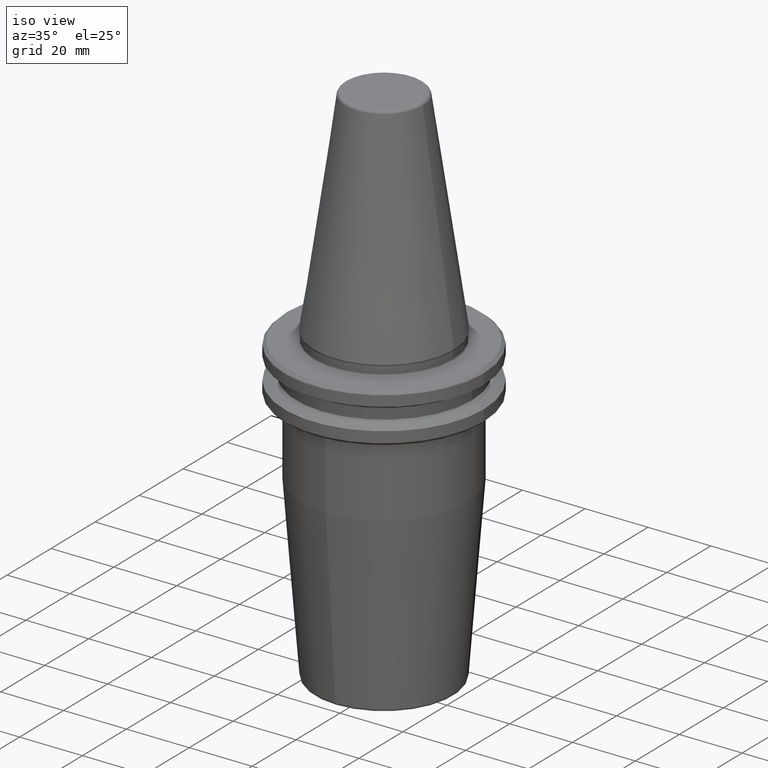
[diagram: clean part render]
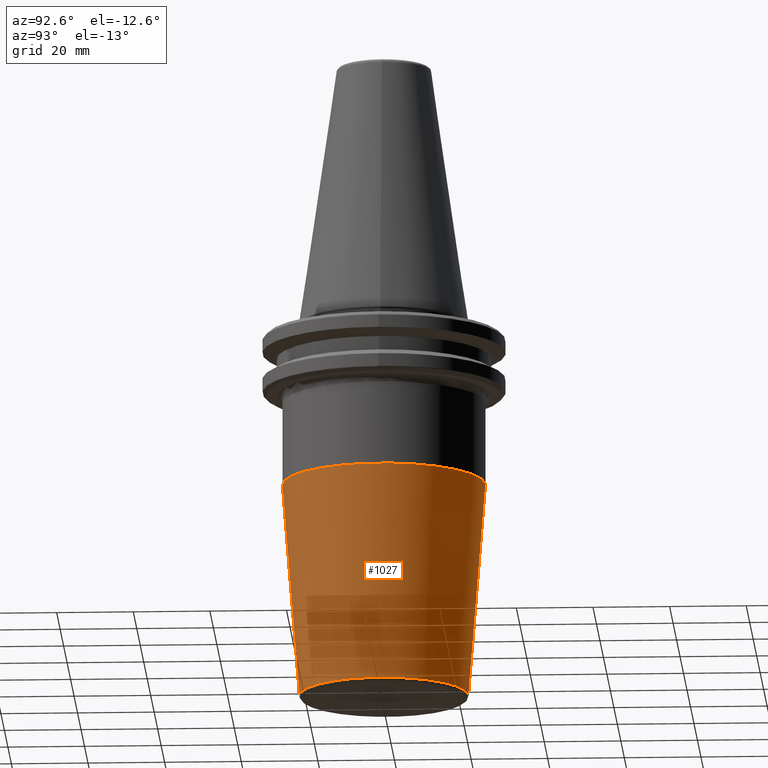
[diagram: tour spotlight — one face highlighted and labeled with its STEP entity id]
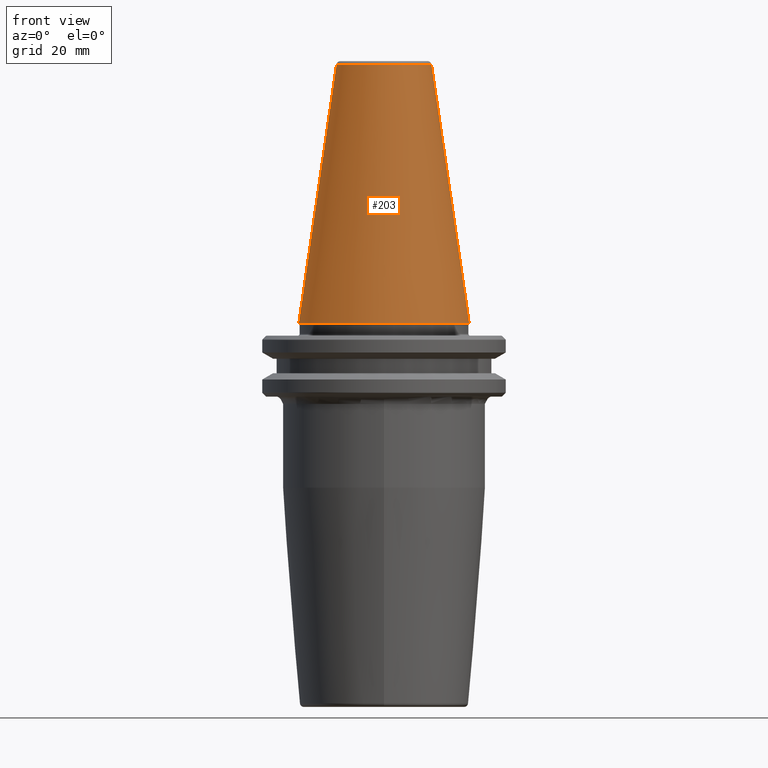
[diagram: tour spotlight — one face highlighted and labeled with its STEP entity id]
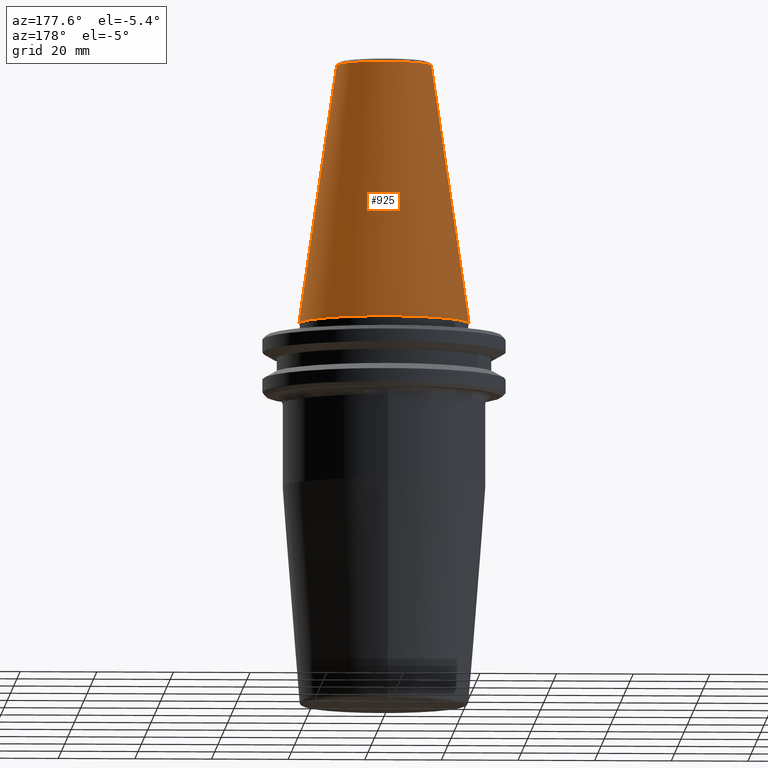
[diagram: tour spotlight — one face highlighted and labeled with its STEP entity id]
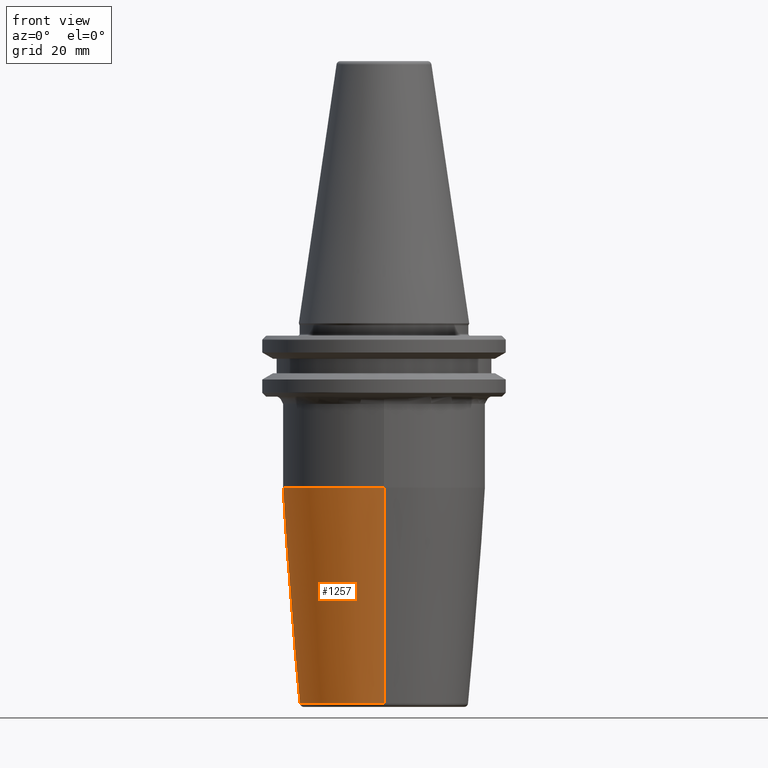
[diagram: tour spotlight — one face highlighted and labeled with its STEP entity id]
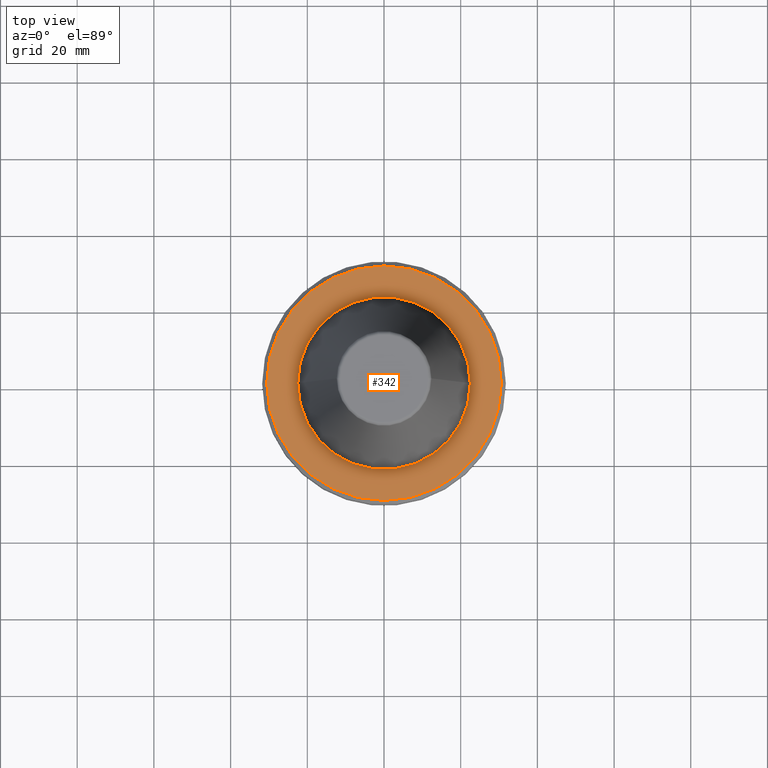
[diagram: tour spotlight — one face highlighted and labeled with its STEP entity id]
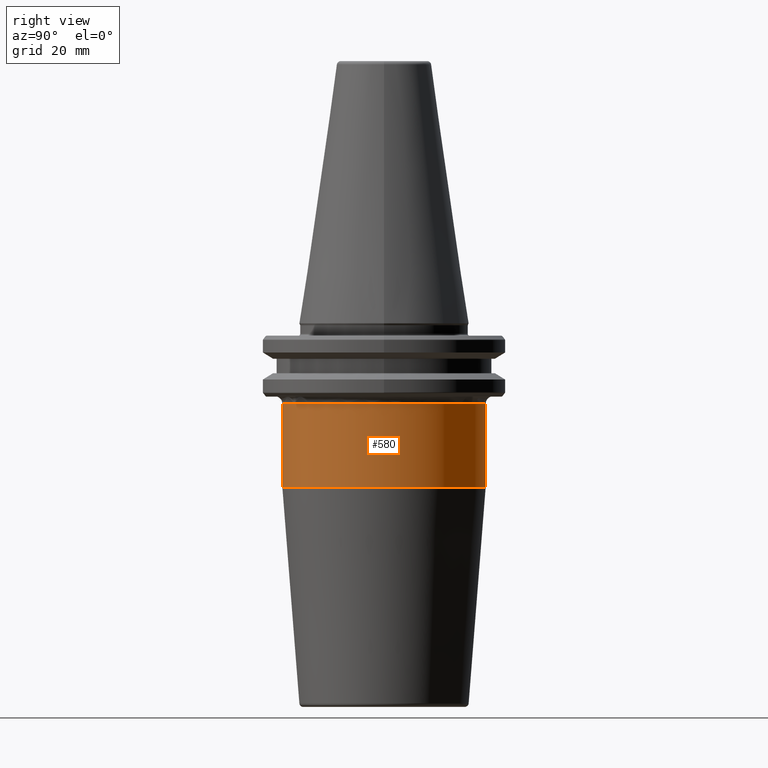
[diagram: tour spotlight — one face highlighted and labeled with its STEP entity id]
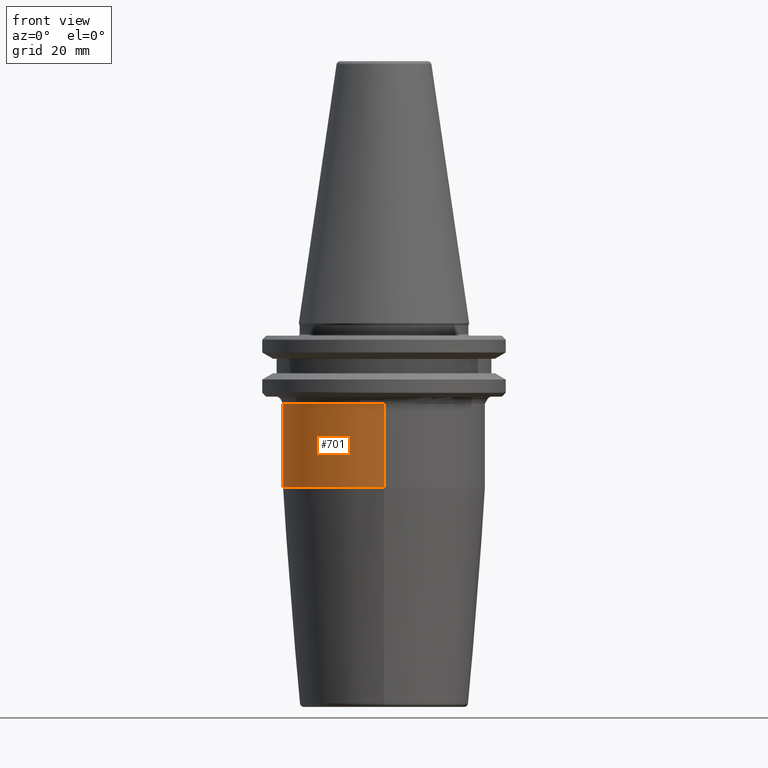
[diagram: tour spotlight — one face highlighted and labeled with its STEP entity id]
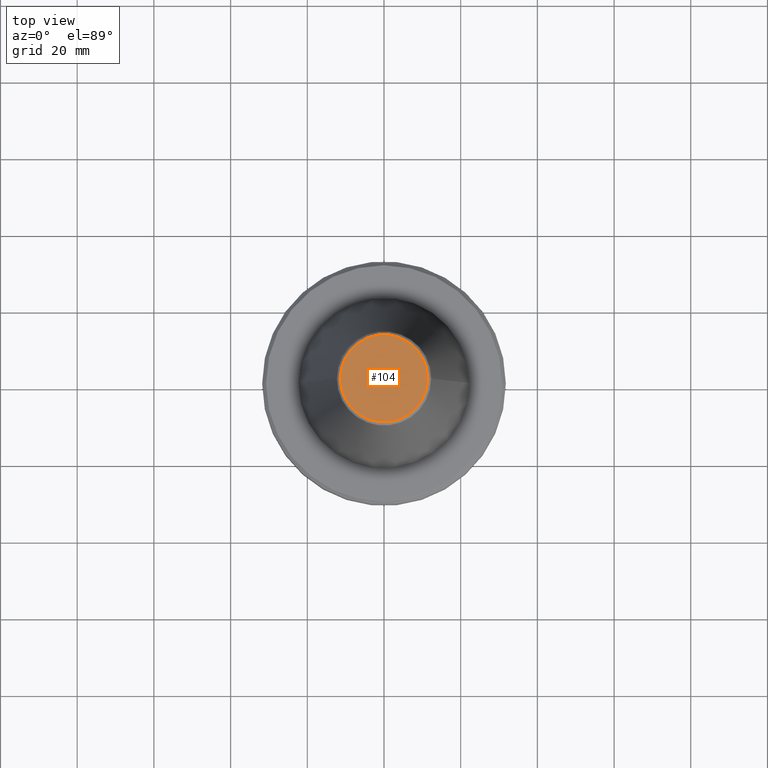
[diagram: tour spotlight — one face highlighted and labeled with its STEP entity id]
A machine part: a face-by-face anatomy tour. The part has 46 B-rep faces; the first image is the clean iso view, then the 8 largest visible faces are spotlighted one at a time (largest first), each with its STEP entity span.

Face 1 — auxiliary view, entity #1027. In plain terms, the highlighted conical surface has half-angle 4.5 deg.
Definition (entity closure, byte-faithful):
#33 = ORIENTED_EDGE ( 'NONE', *, *, #617, .T. ) ;
#139 = CARTESIAN_POINT ( 'NONE',  ( 0.0000000000000000000, -1.146734562630550800E-014, -42.82207868721393900 ) ) ;
#172 = ORIENTED_EDGE ( 'NONE', *, *, #892, .F. ) ;
#175 = FACE_OUTER_BOUND ( 'NONE', #568, .T. ) ;
#176 = VERTEX_POINT ( 'NONE', #1026 ) ;
#205 = DIRECTION ( 'NONE',  ( 9.608468044710158200E-018, 0.07845909572784511000, 0.9969173337331278500 ) ) ;
#257 = DIRECTION ( 'NONE',  ( -0.0000000000000000000, 2.433918356085496500E-016, -1.000000000000000000 ) ) ;
#271 = CARTESIAN_POINT ( 'NONE',  ( 0.0000000000000000000, 22.07252684207491800, -99.07845909572785100 ) ) ;
#273 = DIRECTION ( 'NONE',  ( 0.0000000000000000000, -1.000000000000000000, 0.0000000000000000000 ) ) ;
#311 = ORIENTED_EDGE ( 'NONE', *, *, #1006, .F. ) ;
#314 = VECTOR ( 'NONE', #205, 1000.000000000000100 ) ;
#343 = LINE ( 'NONE', #1123, #314 ) ;
#361 = CARTESIAN_POINT ( 'NONE',  ( 2.703104934624108200E-015, -22.07252684207491100, -99.07845909572785100 ) ) ;
#422 = DIRECTION ( 'NONE',  ( 0.0000000000000000000, -2.433918356085496500E-016, 1.000000000000000000 ) ) ;
#430 = CIRCLE ( 'NONE', #1098, 22.07252684207491500 ) ;
#443 = DIRECTION ( 'NONE',  ( 0.0000000000000000000, 1.000000000000000000, 2.618450529776311800E-016 ) ) ;
#522 = DIRECTION ( 'NONE',  ( 0.0000000000000000000, 1.000000000000000000, 0.0000000000000000000 ) ) ;
#551 = CARTESIAN_POINT ( 'NONE',  ( 0.0000000000000000000, 2.224998066015546000E-015, -99.07845909572785100 ) ) ;
#552 = EDGE_CURVE ( 'NONE', #952, #176, #922, .T. ) ;
#568 = EDGE_LOOP ( 'NONE', ( #311, #33, #1161, #172 ) ) ;
#598 = DIRECTION ( 'NONE',  ( -0.0000000000000000000, 2.433918356085496500E-016, -1.000000000000000000 ) ) ;
#617 = EDGE_CURVE ( 'NONE', #1150, #952, #343, .T. ) ;
#630 = CONICAL_SURFACE ( 'NONE', #1222, 22.07252684207491500, 0.07853981633974524400 ) ;
#734 = AXIS2_PLACEMENT_3D ( 'NONE', #139, #257, #443 ) ;
#817 = LINE ( 'NONE', #1039, #1045 ) ;
#878 = DIRECTION ( 'NONE',  ( 0.0000000000000000000, -0.07845909572784558200, 0.9969173337331278500 ) ) ;
#892 = EDGE_CURVE ( 'NONE', #1114, #176, #817, .T. ) ;
#922 = CIRCLE ( 'NONE', #734, 26.50000000000001100 ) ;
#944 = CARTESIAN_POINT ( 'NONE',  ( 3.245314017740487300E-015, 26.50000000000000000, -42.82207868721393100 ) ) ;
#952 = VERTEX_POINT ( 'NONE', #944 ) ;
#960 = CARTESIAN_POINT ( 'NONE',  ( 0.0000000000000000000, 2.224998066015546000E-015, -99.07845909572785100 ) ) ;
#1006 = EDGE_CURVE ( 'NONE', #1150, #1114, #430, .T. ) ;
#1026 = CARTESIAN_POINT ( 'NONE',  ( 0.0000000000000000000, -26.50000000000002100, -42.82207868721394600 ) ) ;
#1027 = ADVANCED_FACE ( 'NONE', ( #175 ), #630, .T. ) ;
#1039 = CARTESIAN_POINT ( 'NONE',  ( 0.0000000000000000000, -22.07252684207491100, -99.07845909572785100 ) ) ;
#1045 = VECTOR ( 'NONE', #878, 1000.000000000000100 ) ;
#1098 = AXIS2_PLACEMENT_3D ( 'NONE', #960, #598, #522 ) ;
#1114 = VERTEX_POINT ( 'NONE', #361 ) ;
#1123 = CARTESIAN_POINT ( 'NONE',  ( 2.703104934624108200E-015, 22.07252684207491800, -99.07845909572785100 ) ) ;
#1150 = VERTEX_POINT ( 'NONE', #271 ) ;
#1161 = ORIENTED_EDGE ( 'NONE', *, *, #552, .T. ) ;
#1222 = AXIS2_PLACEMENT_3D ( 'NONE', #551, #422, #273 ) ;

Face 2 — front view, entity #203. In plain terms, the highlighted conical surface has half-angle 8.297 deg.
Definition (entity closure, byte-faithful):
#64 = CARTESIAN_POINT ( 'NONE',  ( 12.37469537611110800, 1.515463108277802100E-015, 67.54430822726729400 ) ) ;
#66 = DIRECTION ( 'NONE',  ( 1.000000000000000000, 0.0000000000000000000, 0.0000000000000000000 ) ) ;
#102 = DIRECTION ( 'NONE',  ( -0.0000000000000000000, -0.0000000000000000000, 1.000000000000000000 ) ) ;
#105 = VERTEX_POINT ( 'NONE', #722 ) ;
#153 = CARTESIAN_POINT ( 'NONE',  ( -22.22500000000000500, 2.721777511104993200E-015, 0.0000000000000000000 ) ) ;
#168 = EDGE_CURVE ( 'NONE', #198, #957, #1213, .T. ) ;
#198 = VERTEX_POINT ( 'NONE', #325 ) ;
#203 = ADVANCED_FACE ( 'NONE', ( #411 ), #378, .T. ) ;
#232 = CARTESIAN_POINT ( 'NONE',  ( 0.0000000000000000000, 0.0000000000000000000, 67.54430822726729400 ) ) ;
#260 = DIRECTION ( 'NONE',  ( 0.1443082272673071000, 1.767266086135364600E-017, -0.9895327864921743500 ) ) ;
#261 = VECTOR ( 'NONE', #387, 1000.000000000000000 ) ;
#286 = LINE ( 'NONE', #668, #261 ) ;
#291 = VERTEX_POINT ( 'NONE', #153 ) ;
#302 = ORIENTED_EDGE ( 'NONE', *, *, #654, .T. ) ;
#325 = CARTESIAN_POINT ( 'NONE',  ( 12.37469537611110800, 2.118620309691397700E-015, 67.54430822726729400 ) ) ;
#378 = CONICAL_SURFACE ( 'NONE', #857, 12.37469537611110800, 0.1448138465474191100 ) ;
#387 = DIRECTION ( 'NONE',  ( -0.1443082272673071000, 0.0000000000000000000, -0.9895327864921743500 ) ) ;
#411 = FACE_OUTER_BOUND ( 'NONE', #445, .T. ) ;
#445 = EDGE_LOOP ( 'NONE', ( #1216, #1096, #302, #870 ) ) ;
#554 = DIRECTION ( 'NONE',  ( 1.000000000000000000, 0.0000000000000000000, 0.0000000000000000000 ) ) ;
#654 = EDGE_CURVE ( 'NONE', #105, #291, #286, .T. ) ;
#655 = CIRCLE ( 'NONE', #950, 22.22500000000000500 ) ;
#668 = CARTESIAN_POINT ( 'NONE',  ( -12.37469537611110800, 0.0000000000000000000, 67.54430822726729400 ) ) ;
#704 = CARTESIAN_POINT ( 'NONE',  ( 22.22500000000000500, 0.0000000000000000000, 0.0000000000000000000 ) ) ;
#710 = VECTOR ( 'NONE', #260, 1000.000000000000000 ) ;
#722 = CARTESIAN_POINT ( 'NONE',  ( -12.37469537611110800, 0.0000000000000000000, 67.54430822726729400 ) ) ;
#730 = CARTESIAN_POINT ( 'NONE',  ( 0.0000000000000000000, 0.0000000000000000000, 67.54430822726729400 ) ) ;
#840 = DIRECTION ( 'NONE',  ( 0.0000000000000000000, 0.0000000000000000000, -1.000000000000000000 ) ) ;
#846 = CARTESIAN_POINT ( 'NONE',  ( 0.0000000000000000000, 0.0000000000000000000, 0.0000000000000000000 ) ) ;
#857 = AXIS2_PLACEMENT_3D ( 'NONE', #730, #840, #1034 ) ;
#870 = ORIENTED_EDGE ( 'NONE', *, *, #1209, .T. ) ;
#891 = CIRCLE ( 'NONE', #1014, 12.37469537611110800 ) ;
#950 = AXIS2_PLACEMENT_3D ( 'NONE', #846, #102, #554 ) ;
#957 = VERTEX_POINT ( 'NONE', #704 ) ;
#966 = DIRECTION ( 'NONE',  ( -0.0000000000000000000, -0.0000000000000000000, 1.000000000000000000 ) ) ;
#1014 = AXIS2_PLACEMENT_3D ( 'NONE', #232, #966, #66 ) ;
#1034 = DIRECTION ( 'NONE',  ( -1.000000000000000000, 0.0000000000000000000, 0.0000000000000000000 ) ) ;
#1096 = ORIENTED_EDGE ( 'NONE', *, *, #1243, .F. ) ;
#1209 = EDGE_CURVE ( 'NONE', #291, #957, #655, .T. ) ;
#1213 = LINE ( 'NONE', #64, #710 ) ;
#1216 = ORIENTED_EDGE ( 'NONE', *, *, #168, .F. ) ;
#1243 = EDGE_CURVE ( 'NONE', #105, #198, #891, .T. ) ;

Face 3 — auxiliary view, entity #925. In plain terms, the highlighted conical surface has half-angle 8.297 deg.
Definition (entity closure, byte-faithful):
#64 = CARTESIAN_POINT ( 'NONE',  ( 12.37469537611110800, 1.515463108277802100E-015, 67.54430822726729400 ) ) ;
#67 = ORIENTED_EDGE ( 'NONE', *, *, #197, .F. ) ;
#105 = VERTEX_POINT ( 'NONE', #722 ) ;
#114 = DIRECTION ( 'NONE',  ( 0.0000000000000000000, 0.0000000000000000000, -1.000000000000000000 ) ) ;
#144 = CIRCLE ( 'NONE', #352, 22.22500000000000500 ) ;
#145 = DIRECTION ( 'NONE',  ( 1.000000000000000000, 0.0000000000000000000, 0.0000000000000000000 ) ) ;
#153 = CARTESIAN_POINT ( 'NONE',  ( -22.22500000000000500, 2.721777511104993200E-015, 0.0000000000000000000 ) ) ;
#168 = EDGE_CURVE ( 'NONE', #198, #957, #1213, .T. ) ;
#197 = EDGE_CURVE ( 'NONE', #198, #105, #444, .T. ) ;
#198 = VERTEX_POINT ( 'NONE', #325 ) ;
#260 = DIRECTION ( 'NONE',  ( 0.1443082272673071000, 1.767266086135364600E-017, -0.9895327864921743500 ) ) ;
#261 = VECTOR ( 'NONE', #387, 1000.000000000000000 ) ;
#286 = LINE ( 'NONE', #668, #261 ) ;
#291 = VERTEX_POINT ( 'NONE', #153 ) ;
#296 = FACE_OUTER_BOUND ( 'NONE', #747, .T. ) ;
#321 = ORIENTED_EDGE ( 'NONE', *, *, #168, .T. ) ;
#325 = CARTESIAN_POINT ( 'NONE',  ( 12.37469537611110800, 2.118620309691397700E-015, 67.54430822726729400 ) ) ;
#336 = DIRECTION ( 'NONE',  ( 1.000000000000000000, 0.0000000000000000000, 0.0000000000000000000 ) ) ;
#352 = AXIS2_PLACEMENT_3D ( 'NONE', #447, #458, #145 ) ;
#369 = ORIENTED_EDGE ( 'NONE', *, *, #654, .F. ) ;
#382 = DIRECTION ( 'NONE',  ( -1.000000000000000000, 0.0000000000000000000, 0.0000000000000000000 ) ) ;
#387 = DIRECTION ( 'NONE',  ( -0.1443082272673071000, 0.0000000000000000000, -0.9895327864921743500 ) ) ;
#399 = ORIENTED_EDGE ( 'NONE', *, *, #573, .T. ) ;
#432 = CARTESIAN_POINT ( 'NONE',  ( 0.0000000000000000000, 0.0000000000000000000, 67.54430822726729400 ) ) ;
#444 = CIRCLE ( 'NONE', #762, 12.37469537611110800 ) ;
#447 = CARTESIAN_POINT ( 'NONE',  ( 0.0000000000000000000, 0.0000000000000000000, 0.0000000000000000000 ) ) ;
#458 = DIRECTION ( 'NONE',  ( -0.0000000000000000000, -0.0000000000000000000, 1.000000000000000000 ) ) ;
#573 = EDGE_CURVE ( 'NONE', #957, #291, #144, .T. ) ;
#644 = AXIS2_PLACEMENT_3D ( 'NONE', #1048, #114, #382 ) ;
#654 = EDGE_CURVE ( 'NONE', #105, #291, #286, .T. ) ;
#668 = CARTESIAN_POINT ( 'NONE',  ( -12.37469537611110800, 0.0000000000000000000, 67.54430822726729400 ) ) ;
#704 = CARTESIAN_POINT ( 'NONE',  ( 22.22500000000000500, 0.0000000000000000000, 0.0000000000000000000 ) ) ;
#710 = VECTOR ( 'NONE', #260, 1000.000000000000000 ) ;
#722 = CARTESIAN_POINT ( 'NONE',  ( -12.37469537611110800, 0.0000000000000000000, 67.54430822726729400 ) ) ;
#729 = CONICAL_SURFACE ( 'NONE', #644, 12.37469537611110800, 0.1448138465474191100 ) ;
#747 = EDGE_LOOP ( 'NONE', ( #67, #321, #399, #369 ) ) ;
#762 = AXIS2_PLACEMENT_3D ( 'NONE', #432, #1019, #336 ) ;
#925 = ADVANCED_FACE ( 'NONE', ( #296 ), #729, .T. ) ;
#957 = VERTEX_POINT ( 'NONE', #704 ) ;
#1019 = DIRECTION ( 'NONE',  ( -0.0000000000000000000, -0.0000000000000000000, 1.000000000000000000 ) ) ;
#1048 = CARTESIAN_POINT ( 'NONE',  ( 0.0000000000000000000, 0.0000000000000000000, 67.54430822726729400 ) ) ;
#1213 = LINE ( 'NONE', #64, #710 ) ;

Face 4 — front view, entity #1257. In plain terms, the highlighted conical surface has half-angle 4.5 deg.
Definition (entity closure, byte-faithful):
#32 = ORIENTED_EDGE ( 'NONE', *, *, #671, .F. ) ;
#82 = DIRECTION ( 'NONE',  ( 0.0000000000000000000, 1.000000000000000000, 2.618450529776311800E-016 ) ) ;
#158 = AXIS2_PLACEMENT_3D ( 'NONE', #345, #406, #990 ) ;
#176 = VERTEX_POINT ( 'NONE', #1026 ) ;
#205 = DIRECTION ( 'NONE',  ( 9.608468044710158200E-018, 0.07845909572784511000, 0.9969173337331278500 ) ) ;
#230 = DIRECTION ( 'NONE',  ( -0.0000000000000000000, 2.433918356085496500E-016, -1.000000000000000000 ) ) ;
#234 = AXIS2_PLACEMENT_3D ( 'NONE', #677, #230, #82 ) ;
#271 = CARTESIAN_POINT ( 'NONE',  ( 0.0000000000000000000, 22.07252684207491800, -99.07845909572785100 ) ) ;
#276 = DIRECTION ( 'NONE',  ( 0.0000000000000000000, -2.433918356085496500E-016, 1.000000000000000000 ) ) ;
#314 = VECTOR ( 'NONE', #205, 1000.000000000000100 ) ;
#341 = CIRCLE ( 'NONE', #234, 26.50000000000001100 ) ;
#343 = LINE ( 'NONE', #1123, #314 ) ;
#345 = CARTESIAN_POINT ( 'NONE',  ( 0.0000000000000000000, 2.224998066015546000E-015, -99.07845909572785100 ) ) ;
#361 = CARTESIAN_POINT ( 'NONE',  ( 2.703104934624108200E-015, -22.07252684207491100, -99.07845909572785100 ) ) ;
#406 = DIRECTION ( 'NONE',  ( -0.0000000000000000000, 2.433918356085496500E-016, -1.000000000000000000 ) ) ;
#462 = ORIENTED_EDGE ( 'NONE', *, *, #617, .F. ) ;
#567 = CARTESIAN_POINT ( 'NONE',  ( 0.0000000000000000000, 2.224998066015546000E-015, -99.07845909572785100 ) ) ;
#576 = ORIENTED_EDGE ( 'NONE', *, *, #1082, .T. ) ;
#617 = EDGE_CURVE ( 'NONE', #1150, #952, #343, .T. ) ;
#671 = EDGE_CURVE ( 'NONE', #1114, #1150, #1242, .T. ) ;
#677 = CARTESIAN_POINT ( 'NONE',  ( 0.0000000000000000000, -1.146734562630550800E-014, -42.82207868721393900 ) ) ;
#817 = LINE ( 'NONE', #1039, #1045 ) ;
#826 = CONICAL_SURFACE ( 'NONE', #1259, 22.07252684207491500, 0.07853981633974524400 ) ;
#878 = DIRECTION ( 'NONE',  ( 0.0000000000000000000, -0.07845909572784558200, 0.9969173337331278500 ) ) ;
#892 = EDGE_CURVE ( 'NONE', #1114, #176, #817, .T. ) ;
#944 = CARTESIAN_POINT ( 'NONE',  ( 3.245314017740487300E-015, 26.50000000000000000, -42.82207868721393100 ) ) ;
#952 = VERTEX_POINT ( 'NONE', #944 ) ;
#977 = EDGE_LOOP ( 'NONE', ( #462, #32, #993, #576 ) ) ;
#990 = DIRECTION ( 'NONE',  ( 0.0000000000000000000, 1.000000000000000000, 0.0000000000000000000 ) ) ;
#993 = ORIENTED_EDGE ( 'NONE', *, *, #892, .T. ) ;
#1026 = CARTESIAN_POINT ( 'NONE',  ( 0.0000000000000000000, -26.50000000000002100, -42.82207868721394600 ) ) ;
#1039 = CARTESIAN_POINT ( 'NONE',  ( 0.0000000000000000000, -22.07252684207491100, -99.07845909572785100 ) ) ;
#1045 = VECTOR ( 'NONE', #878, 1000.000000000000100 ) ;
#1050 = DIRECTION ( 'NONE',  ( 0.0000000000000000000, -1.000000000000000000, 0.0000000000000000000 ) ) ;
#1082 = EDGE_CURVE ( 'NONE', #176, #952, #341, .T. ) ;
#1109 = FACE_OUTER_BOUND ( 'NONE', #977, .T. ) ;
#1114 = VERTEX_POINT ( 'NONE', #361 ) ;
#1123 = CARTESIAN_POINT ( 'NONE',  ( 2.703104934624108200E-015, 22.07252684207491800, -99.07845909572785100 ) ) ;
#1150 = VERTEX_POINT ( 'NONE', #271 ) ;
#1242 = CIRCLE ( 'NONE', #158, 22.07252684207491500 ) ;
#1257 = ADVANCED_FACE ( 'NONE', ( #1109 ), #826, .T. ) ;
#1259 = AXIS2_PLACEMENT_3D ( 'NONE', #567, #276, #1050 ) ;

Face 5 — top view, entity #342. In plain terms, the highlighted planar face has unit normal (0, -0, 1).
Definition (entity closure, byte-faithful):
#50 = EDGE_CURVE ( 'NONE', #1108, #450, #1054, .T. ) ;
#60 = FACE_OUTER_BOUND ( 'NONE', #800, .T. ) ;
#71 = CARTESIAN_POINT ( 'NONE',  ( 22.50000000000000000, 0.0000000000000000000, -3.199999999999996600 ) ) ;
#86 = CARTESIAN_POINT ( 'NONE',  ( 0.0000000000000000000, 0.0000000000000000000, -3.199999999999994400 ) ) ;
#124 = AXIS2_PLACEMENT_3D ( 'NONE', #86, #125, #689 ) ;
#125 = DIRECTION ( 'NONE',  ( -0.0000000000000000000, -0.0000000000000000000, 1.000000000000000000 ) ) ;
#128 = DIRECTION ( 'NONE',  ( 1.000000000000000000, 0.0000000000000000000, 0.0000000000000000000 ) ) ;
#129 = DIRECTION ( 'NONE',  ( -0.0000000000000000000, -0.0000000000000000000, 1.000000000000000000 ) ) ;
#131 = DIRECTION ( 'NONE',  ( 1.000000000000000000, 0.0000000000000000000, 0.0000000000000000000 ) ) ;
#185 = CARTESIAN_POINT ( 'NONE',  ( -22.50000000000000000, 2.755455298081544800E-015, -3.199999999999996600 ) ) ;
#306 = CARTESIAN_POINT ( 'NONE',  ( 30.58431457505076200, 0.0000000000000000000, -3.199999999999994400 ) ) ;
#320 = DIRECTION ( 'NONE',  ( -0.0000000000000000000, -0.0000000000000000000, 1.000000000000000000 ) ) ;
#342 = ADVANCED_FACE ( 'NONE', ( #60, #1102 ), #464, .T. ) ;
#413 = DIRECTION ( 'NONE',  ( 1.000000000000000000, 0.0000000000000000000, 0.0000000000000000000 ) ) ;
#450 = VERTEX_POINT ( 'NONE', #185 ) ;
#463 = CARTESIAN_POINT ( 'NONE',  ( 0.0000000000000000000, 0.0000000000000000000, -3.199999999999994400 ) ) ;
#464 = PLANE ( 'NONE',  #951 ) ;
#466 = DIRECTION ( 'NONE',  ( 1.000000000000000000, 0.0000000000000000000, 0.0000000000000000000 ) ) ;
#482 = CARTESIAN_POINT ( 'NONE',  ( -30.58431457505076200, 3.762817415969875600E-015, -3.199999999999994400 ) ) ;
#511 = ORIENTED_EDGE ( 'NONE', *, *, #911, .T. ) ;
#516 = AXIS2_PLACEMENT_3D ( 'NONE', #463, #708, #128 ) ;
#548 = CIRCLE ( 'NONE', #516, 30.58431457505076200 ) ;
#603 = ORIENTED_EDGE ( 'NONE', *, *, #605, .F. ) ;
#605 = EDGE_CURVE ( 'NONE', #450, #1108, #902, .T. ) ;
#612 = CIRCLE ( 'NONE', #124, 30.58431457505076200 ) ;
#689 = DIRECTION ( 'NONE',  ( 1.000000000000000000, 0.0000000000000000000, 0.0000000000000000000 ) ) ;
#708 = DIRECTION ( 'NONE',  ( -0.0000000000000000000, -0.0000000000000000000, 1.000000000000000000 ) ) ;
#732 = CARTESIAN_POINT ( 'NONE',  ( 0.0000000000000000000, 0.0000000000000000000, -3.199999999999994400 ) ) ;
#798 = EDGE_CURVE ( 'NONE', #1234, #903, #612, .T. ) ;
#800 = EDGE_LOOP ( 'NONE', ( #1249, #511 ) ) ;
#810 = ORIENTED_EDGE ( 'NONE', *, *, #50, .F. ) ;
#848 = DIRECTION ( 'NONE',  ( 0.0000000000000000000, -0.0000000000000000000, 1.000000000000000000 ) ) ;
#901 = AXIS2_PLACEMENT_3D ( 'NONE', #1095, #129, #413 ) ;
#902 = CIRCLE ( 'NONE', #949, 22.50000000000000000 ) ;
#903 = VERTEX_POINT ( 'NONE', #482 ) ;
#911 = EDGE_CURVE ( 'NONE', #903, #1234, #548, .T. ) ;
#949 = AXIS2_PLACEMENT_3D ( 'NONE', #732, #320, #466 ) ;
#951 = AXIS2_PLACEMENT_3D ( 'NONE', #1118, #848, #131 ) ;
#1054 = CIRCLE ( 'NONE', #901, 22.50000000000000000 ) ;
#1095 = CARTESIAN_POINT ( 'NONE',  ( 0.0000000000000000000, 0.0000000000000000000, -3.199999999999994400 ) ) ;
#1102 = FACE_BOUND ( 'NONE', #1197, .T. ) ;
#1108 = VERTEX_POINT ( 'NONE', #71 ) ;
#1118 = CARTESIAN_POINT ( 'NONE',  ( 0.0000000000000000000, 0.0000000000000000000, -3.200000000000000200 ) ) ;
#1197 = EDGE_LOOP ( 'NONE', ( #810, #603 ) ) ;
#1234 = VERTEX_POINT ( 'NONE', #306 ) ;
#1249 = ORIENTED_EDGE ( 'NONE', *, *, #798, .T. ) ;

Face 6 — right view, entity #580. In plain terms, the highlighted cylindrical surface (partial cylindrical patch) has radius 26.5 mm, axis along (-0, 0, -1).
Definition (entity closure, byte-faithful):
#6 = DIRECTION ( 'NONE',  ( -0.0000000000000000000, 2.433918356085496500E-016, -1.000000000000000000 ) ) ;
#7 = CARTESIAN_POINT ( 'NONE',  ( 0.0000000000000000000, 26.50000000000001400, -100.0000000000000000 ) ) ;
#20 = DIRECTION ( 'NONE',  ( -0.0000000000000000000, 2.433918356085496500E-016, -1.000000000000000000 ) ) ;
#44 = CARTESIAN_POINT ( 'NONE',  ( 0.0000000000000000000, 2.449293598294707300E-015, -100.0000000000000000 ) ) ;
#63 = CARTESIAN_POINT ( 'NONE',  ( 3.245314017740488100E-015, -26.50000000000003200, -20.98284271247461400 ) ) ;
#76 = EDGE_CURVE ( 'NONE', #656, #952, #1025, .T. ) ;
#111 = CYLINDRICAL_SURFACE ( 'NONE', #409, 26.50000000000001100 ) ;
#139 = CARTESIAN_POINT ( 'NONE',  ( 0.0000000000000000000, -1.146734562630550800E-014, -42.82207868721393900 ) ) ;
#161 = ORIENTED_EDGE ( 'NONE', *, *, #695, .T. ) ;
#176 = VERTEX_POINT ( 'NONE', #1026 ) ;
#212 = CIRCLE ( 'NONE', #769, 26.50000000000001400 ) ;
#257 = DIRECTION ( 'NONE',  ( -0.0000000000000000000, 2.433918356085496500E-016, -1.000000000000000000 ) ) ;
#262 = DIRECTION ( 'NONE',  ( -0.0000000000000000000, 2.433918356085496500E-016, -1.000000000000000000 ) ) ;
#337 = DIRECTION ( 'NONE',  ( 0.0000000000000000000, 1.000000000000000000, 0.0000000000000000000 ) ) ;
#409 = AXIS2_PLACEMENT_3D ( 'NONE', #44, #262, #337 ) ;
#443 = DIRECTION ( 'NONE',  ( 0.0000000000000000000, 1.000000000000000000, 2.618450529776311800E-016 ) ) ;
#508 = VECTOR ( 'NONE', #20, 1000.000000000000000 ) ;
#524 = EDGE_CURVE ( 'NONE', #656, #1154, #212, .T. ) ;
#542 = LINE ( 'NONE', #1078, #1220 ) ;
#552 = EDGE_CURVE ( 'NONE', #952, #176, #922, .T. ) ;
#553 = DIRECTION ( 'NONE',  ( 0.0000000000000000000, 1.000000000000000000, 2.618450529776311300E-016 ) ) ;
#580 = ADVANCED_FACE ( 'NONE', ( #1144 ), #111, .T. ) ;
#622 = ORIENTED_EDGE ( 'NONE', *, *, #76, .F. ) ;
#628 = ORIENTED_EDGE ( 'NONE', *, *, #552, .F. ) ;
#656 = VERTEX_POINT ( 'NONE', #1088 ) ;
#695 = EDGE_CURVE ( 'NONE', #1154, #176, #542, .T. ) ;
#734 = AXIS2_PLACEMENT_3D ( 'NONE', #139, #257, #443 ) ;
#755 = DIRECTION ( 'NONE',  ( -0.0000000000000000000, 2.433918356085496500E-016, -1.000000000000000000 ) ) ;
#769 = AXIS2_PLACEMENT_3D ( 'NONE', #1254, #755, #553 ) ;
#922 = CIRCLE ( 'NONE', #734, 26.50000000000001100 ) ;
#944 = CARTESIAN_POINT ( 'NONE',  ( 3.245314017740487300E-015, 26.50000000000000000, -42.82207868721393100 ) ) ;
#952 = VERTEX_POINT ( 'NONE', #944 ) ;
#1018 = EDGE_LOOP ( 'NONE', ( #1204, #161, #628, #622 ) ) ;
#1025 = LINE ( 'NONE', #7, #508 ) ;
#1026 = CARTESIAN_POINT ( 'NONE',  ( 0.0000000000000000000, -26.50000000000002100, -42.82207868721394600 ) ) ;
#1078 = CARTESIAN_POINT ( 'NONE',  ( 3.245314017740487300E-015, -26.50000000000000700, -100.0000000000000000 ) ) ;
#1088 = CARTESIAN_POINT ( 'NONE',  ( 0.0000000000000000000, 26.49999999999999600, -20.98284271247460000 ) ) ;
#1144 = FACE_OUTER_BOUND ( 'NONE', #1018, .T. ) ;
#1154 = VERTEX_POINT ( 'NONE', #63 ) ;
#1204 = ORIENTED_EDGE ( 'NONE', *, *, #524, .T. ) ;
#1220 = VECTOR ( 'NONE', #6, 1000.000000000000000 ) ;
#1254 = CARTESIAN_POINT ( 'NONE',  ( 0.0000000000000000000, -1.678283735848558500E-014, -20.98284271247460700 ) ) ;

Face 7 — front view, entity #701. In plain terms, the highlighted cylindrical surface (partial cylindrical patch) has radius 26.5 mm, axis along (-0, 0, -1).
Definition (entity closure, byte-faithful):
#6 = DIRECTION ( 'NONE',  ( -0.0000000000000000000, 2.433918356085496500E-016, -1.000000000000000000 ) ) ;
#7 = CARTESIAN_POINT ( 'NONE',  ( 0.0000000000000000000, 26.50000000000001400, -100.0000000000000000 ) ) ;
#20 = DIRECTION ( 'NONE',  ( -0.0000000000000000000, 2.433918356085496500E-016, -1.000000000000000000 ) ) ;
#55 = AXIS2_PLACEMENT_3D ( 'NONE', #557, #770, #103 ) ;
#63 = CARTESIAN_POINT ( 'NONE',  ( 3.245314017740488100E-015, -26.50000000000003200, -20.98284271247461400 ) ) ;
#76 = EDGE_CURVE ( 'NONE', #656, #952, #1025, .T. ) ;
#81 = ORIENTED_EDGE ( 'NONE', *, *, #474, .T. ) ;
#82 = DIRECTION ( 'NONE',  ( 0.0000000000000000000, 1.000000000000000000, 2.618450529776311800E-016 ) ) ;
#103 = DIRECTION ( 'NONE',  ( 0.0000000000000000000, 1.000000000000000000, 0.0000000000000000000 ) ) ;
#159 = DIRECTION ( 'NONE',  ( 0.0000000000000000000, 1.000000000000000000, 2.618450529776311300E-016 ) ) ;
#176 = VERTEX_POINT ( 'NONE', #1026 ) ;
#194 = FACE_OUTER_BOUND ( 'NONE', #319, .T. ) ;
#230 = DIRECTION ( 'NONE',  ( -0.0000000000000000000, 2.433918356085496500E-016, -1.000000000000000000 ) ) ;
#234 = AXIS2_PLACEMENT_3D ( 'NONE', #677, #230, #82 ) ;
#319 = EDGE_LOOP ( 'NONE', ( #1083, #81, #999, #1177 ) ) ;
#341 = CIRCLE ( 'NONE', #234, 26.50000000000001100 ) ;
#353 = DIRECTION ( 'NONE',  ( -0.0000000000000000000, 2.433918356085496500E-016, -1.000000000000000000 ) ) ;
#474 = EDGE_CURVE ( 'NONE', #1154, #656, #497, .T. ) ;
#497 = CIRCLE ( 'NONE', #1217, 26.50000000000001400 ) ;
#508 = VECTOR ( 'NONE', #20, 1000.000000000000000 ) ;
#542 = LINE ( 'NONE', #1078, #1220 ) ;
#557 = CARTESIAN_POINT ( 'NONE',  ( 0.0000000000000000000, 2.449293598294707300E-015, -100.0000000000000000 ) ) ;
#656 = VERTEX_POINT ( 'NONE', #1088 ) ;
#677 = CARTESIAN_POINT ( 'NONE',  ( 0.0000000000000000000, -1.146734562630550800E-014, -42.82207868721393900 ) ) ;
#695 = EDGE_CURVE ( 'NONE', #1154, #176, #542, .T. ) ;
#701 = ADVANCED_FACE ( 'NONE', ( #194 ), #938, .T. ) ;
#770 = DIRECTION ( 'NONE',  ( -0.0000000000000000000, 2.433918356085496500E-016, -1.000000000000000000 ) ) ;
#938 = CYLINDRICAL_SURFACE ( 'NONE', #55, 26.50000000000001100 ) ;
#944 = CARTESIAN_POINT ( 'NONE',  ( 3.245314017740487300E-015, 26.50000000000000000, -42.82207868721393100 ) ) ;
#952 = VERTEX_POINT ( 'NONE', #944 ) ;
#999 = ORIENTED_EDGE ( 'NONE', *, *, #76, .T. ) ;
#1025 = LINE ( 'NONE', #7, #508 ) ;
#1026 = CARTESIAN_POINT ( 'NONE',  ( 0.0000000000000000000, -26.50000000000002100, -42.82207868721394600 ) ) ;
#1078 = CARTESIAN_POINT ( 'NONE',  ( 3.245314017740487300E-015, -26.50000000000000700, -100.0000000000000000 ) ) ;
#1082 = EDGE_CURVE ( 'NONE', #176, #952, #341, .T. ) ;
#1083 = ORIENTED_EDGE ( 'NONE', *, *, #695, .F. ) ;
#1088 = CARTESIAN_POINT ( 'NONE',  ( 0.0000000000000000000, 26.49999999999999600, -20.98284271247460000 ) ) ;
#1117 = CARTESIAN_POINT ( 'NONE',  ( 0.0000000000000000000, -1.678283735848558500E-014, -20.98284271247460700 ) ) ;
#1154 = VERTEX_POINT ( 'NONE', #63 ) ;
#1177 = ORIENTED_EDGE ( 'NONE', *, *, #1082, .F. ) ;
#1217 = AXIS2_PLACEMENT_3D ( 'NONE', #1117, #353, #159 ) ;
#1220 = VECTOR ( 'NONE', #6, 1000.000000000000000 ) ;

Face 8 — top view, entity #104. In plain terms, the highlighted planar face has unit normal (0, -0, 1).
Definition (entity closure, byte-faithful):
#22 = AXIS2_PLACEMENT_3D ( 'NONE', #1206, #574, #37 ) ;
#37 = DIRECTION ( 'NONE',  ( 1.000000000000000000, 0.0000000000000000000, 0.0000000000000000000 ) ) ;
#99 = CIRCLE ( 'NONE', #1198, 11.38516258961893100 ) ;
#104 = ADVANCED_FACE ( 'NONE', ( #281 ), #758, .T. ) ;
#171 = VERTEX_POINT ( 'NONE', #460 ) ;
#281 = FACE_OUTER_BOUND ( 'NONE', #907, .T. ) ;
#460 = CARTESIAN_POINT ( 'NONE',  ( -11.38516258961893100, 1.454871700296352000E-015, 68.40000000000000600 ) ) ;
#488 = ORIENTED_EDGE ( 'NONE', *, *, #1032, .T. ) ;
#574 = DIRECTION ( 'NONE',  ( -0.0000000000000000000, -0.0000000000000000000, 1.000000000000000000 ) ) ;
#647 = DIRECTION ( 'NONE',  ( 0.0000000000000000000, -0.0000000000000000000, 1.000000000000000000 ) ) ;
#727 = CARTESIAN_POINT ( 'NONE',  ( 0.0000000000000000000, -8.337524199435086500E-014, 68.39999999999999100 ) ) ;
#733 = CARTESIAN_POINT ( 'NONE',  ( 11.38516258961893100, 0.0000000000000000000, 68.40000000000000600 ) ) ;
#758 = PLANE ( 'NONE',  #1053 ) ;
#860 = DIRECTION ( 'NONE',  ( -0.0000000000000000000, -0.0000000000000000000, 1.000000000000000000 ) ) ;
#900 = CIRCLE ( 'NONE', #22, 11.38516258961893100 ) ;
#907 = EDGE_LOOP ( 'NONE', ( #945, #488 ) ) ;
#945 = ORIENTED_EDGE ( 'NONE', *, *, #1250, .T. ) ;
#1032 = EDGE_CURVE ( 'NONE', #171, #1261, #900, .T. ) ;
#1053 = AXIS2_PLACEMENT_3D ( 'NONE', #727, #647, #1221 ) ;
#1152 = CARTESIAN_POINT ( 'NONE',  ( 0.0000000000000000000, 0.0000000000000000000, 68.40000000000000600 ) ) ;
#1198 = AXIS2_PLACEMENT_3D ( 'NONE', #1152, #860, #1233 ) ;
#1206 = CARTESIAN_POINT ( 'NONE',  ( 0.0000000000000000000, 0.0000000000000000000, 68.40000000000000600 ) ) ;
#1221 = DIRECTION ( 'NONE',  ( 1.000000000000000000, 0.0000000000000000000, 0.0000000000000000000 ) ) ;
#1233 = DIRECTION ( 'NONE',  ( 1.000000000000000000, 0.0000000000000000000, 0.0000000000000000000 ) ) ;
#1250 = EDGE_CURVE ( 'NONE', #1261, #171, #99, .T. ) ;
#1261 = VERTEX_POINT ( 'NONE', #733 ) ;